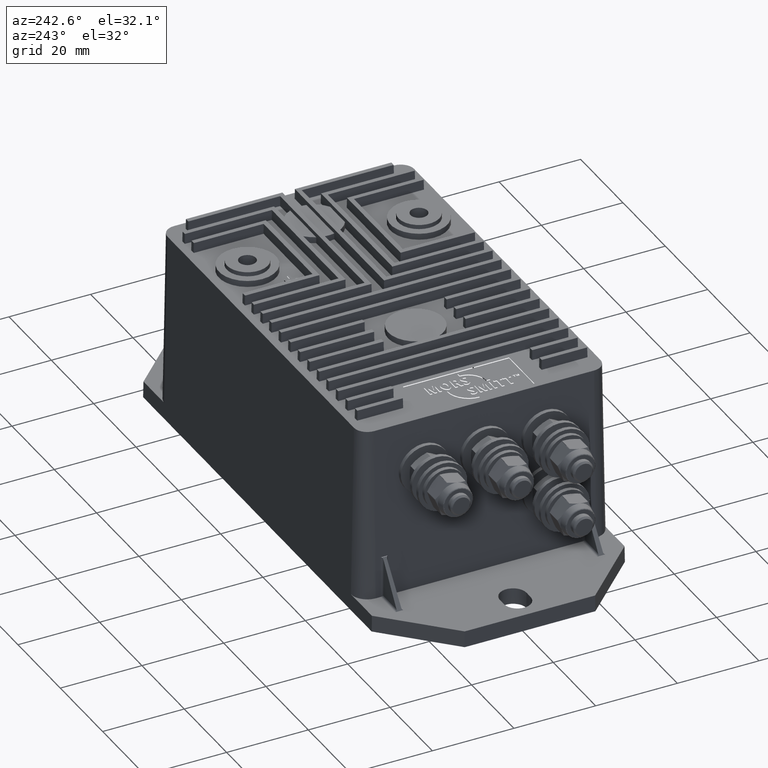
[diagram: clean part render]
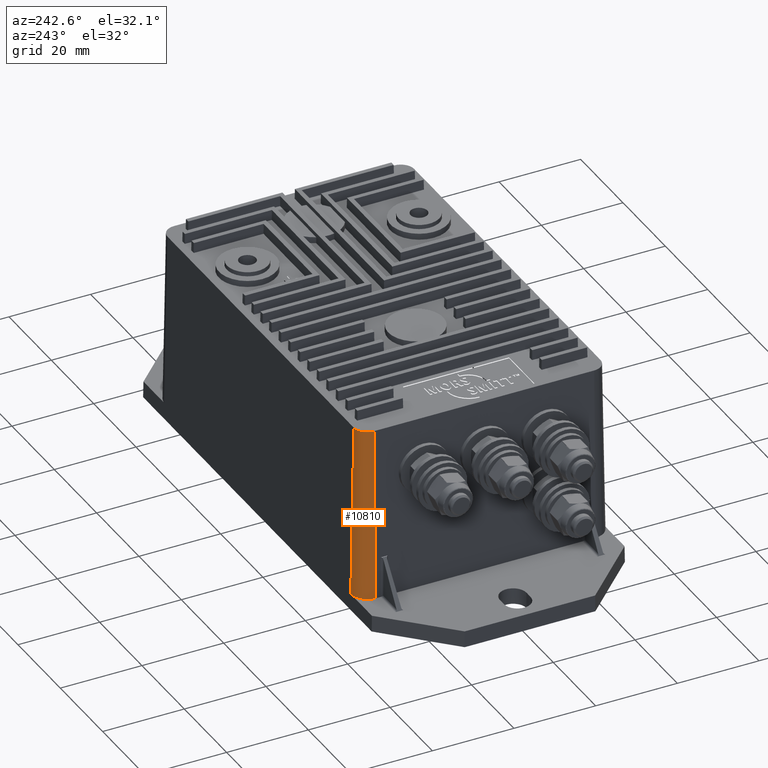
[diagram: same view with one face highlighted and labeled with its STEP entity id]
A machine part, auxiliary view. The second image highlights one B-rep face of the part: STEP entity #10810.
In plain terms, the highlighted conical surface has half-angle 1 deg.
Its self-contained STEP definition (entity closure, byte-faithful):
#4727=CARTESIAN_POINT('',(-47.258159740550909,26.930179740286853,46.5));
#4728=VERTEX_POINT('',#4727);
#4735=CARTESIAN_POINT('',(-48.000000000000149,26.930179740286849,4.0));
#4736=VERTEX_POINT('',#4735);
#4737=CARTESIAN_POINT('',(-48.000000000000149,26.930179740286849,4.0));
#4738=DIRECTION('',(0.017452406437283,8.358053E-017,0.999847695156391));
#4739=VECTOR('',#4738,42.506473941866076);
#4740=LINE('',#4737,#4739);
#4741=EDGE_CURVE('',#4736,#4728,#4740,.T.);
#4908=CARTESIAN_POINT('',(-44.000000000000171,30.930179740286889,4.0));
#4909=VERTEX_POINT('',#4908);
#4910=CARTESIAN_POINT('',(-44.000000000000156,26.930179740286874,4.0));
#4911=DIRECTION('',(0.0,0.0,-1.0));
#4912=DIRECTION('',(0.0,1.0,0.0));
#4913=AXIS2_PLACEMENT_3D('',#4910,#4911,#4912);
#4914=CIRCLE('',#4913,4.0);
#4915=EDGE_CURVE('',#4736,#4909,#4914,.T.);
#6435=CARTESIAN_POINT('',(-44.000000000000171,30.188339480837641,46.5));
#6436=VERTEX_POINT('',#6435);
#6443=CARTESIAN_POINT('',(-44.000000000000156,26.930179740286874,46.5));
#6444=DIRECTION('',(0.0,0.0,-1.0));
#6445=DIRECTION('',(0.0,1.0,0.0));
#6446=AXIS2_PLACEMENT_3D('',#6443,#6444,#6445);
#6447=CIRCLE('',#6446,3.258159740550753);
#6448=EDGE_CURVE('',#4728,#6436,#6447,.T.);
#10794=CARTESIAN_POINT('',(-44.000000000000156,26.930179740286874,4.0));
#10795=DIRECTION('',(4.196753E-019,3.428240E-030,-1.0));
#10796=DIRECTION('',(0.0,1.0,0.0));
#10797=AXIS2_PLACEMENT_3D('',#10794,#10795,#10796);
#10798=CONICAL_SURFACE('',#10797,4.0,1.0);
#10799=ORIENTED_EDGE('',*,*,#6448,.T.);
#10800=CARTESIAN_POINT('',(-44.000000000000171,30.930179740286889,4.0));
#10801=DIRECTION('',(1.671611E-016,-0.017452406437284,0.999847695156391));
#10802=VECTOR('',#10801,42.506473941866076);
#10803=LINE('',#10800,#10802);
#10804=EDGE_CURVE('',#4909,#6436,#10803,.T.);
#10805=ORIENTED_EDGE('',*,*,#10804,.F.);
#10806=ORIENTED_EDGE('',*,*,#4915,.F.);
#10807=ORIENTED_EDGE('',*,*,#4741,.T.);
#10808=EDGE_LOOP('',(#10799,#10805,#10806,#10807));
#10809=FACE_OUTER_BOUND('',#10808,.T.);
#10810=ADVANCED_FACE('',(#10809),#10798,.T.);